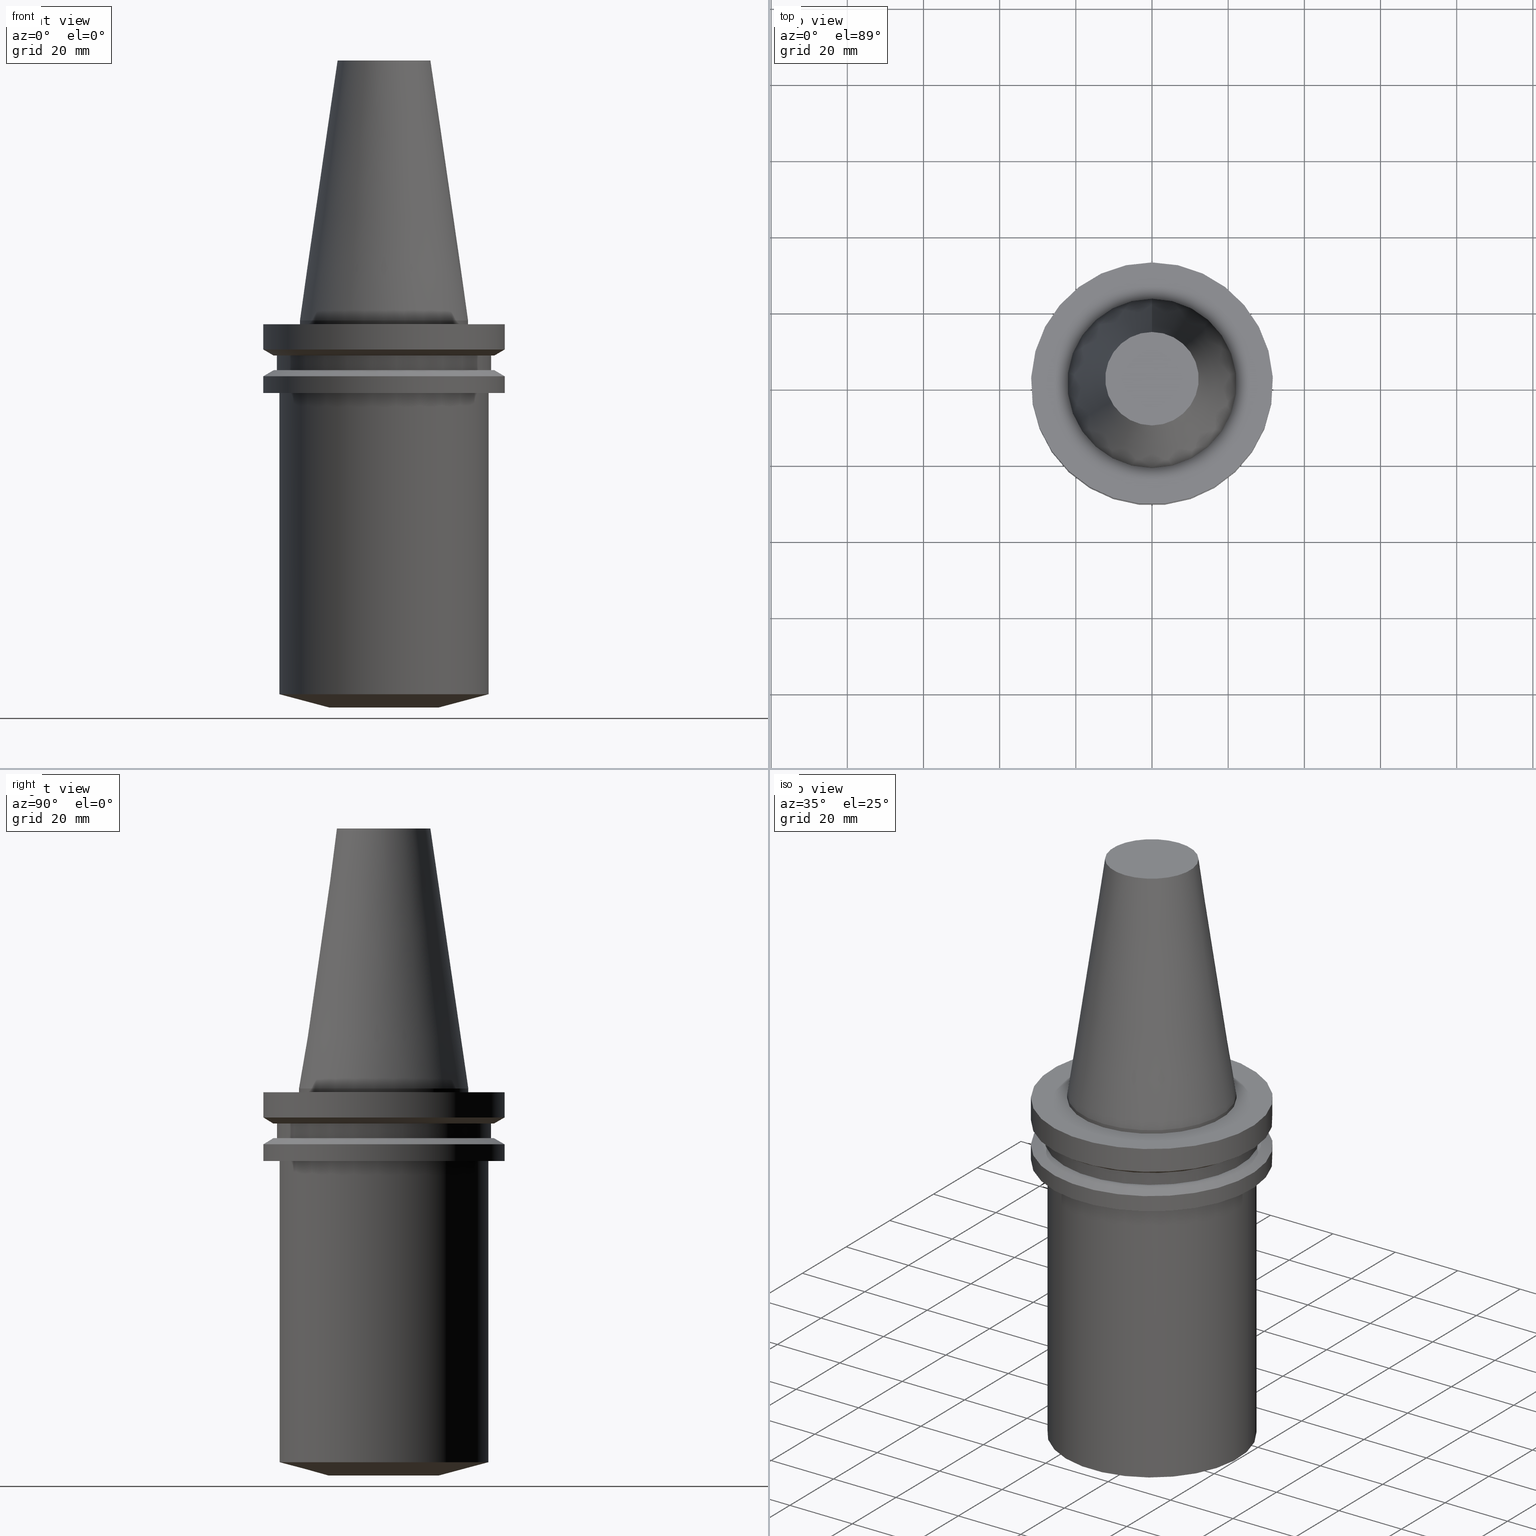
[diagram: canonical four-view strip — front | top / right | iso, engineering-drawing reading convention]
A machine part, canonical four-view strip (front | top / right | iso — engineering-drawing reading convention). The complete STEP part file that produces these views, byte-faithful:
ISO-10303-21;
HEADER;
FILE_DESCRIPTION((''),'1');
FILE_NAME('V:/01_Dxf_Field-HP\X2\FF71FF6FFF8CFF9F5916\X0\2013/BIGKAISER\X2\FF76FF80FF9BFF78FF9E63B28F095206\X0\_BKUS_201803/BCV40Y-BSL/BCV40Y-BSL1.000-4.stp','2018-03-13T06:23:49',(''),(''),'Spatial Interop R21 SP3','Kubotek KeyCreator 2011 V10.0.2 (22737)',' ');
FILE_SCHEMA(('automotive_design'));
ENDSEC;
DATA;
#1=MECHANICAL_DESIGN_GEOMETRIC_PRESENTATION_REPRESENTATION(' ',(#10,#11,#12,#13,#14,#15,#16,#17,#18,#19,#20,#21,#22,#23,#24,#25,#26,#27,#28,#29,#30,#31,#32,#33,#34,#35,#36,#37,#38,#39),#6);
#2=PRODUCT_DEFINITION_CONTEXT('',#40,'design');
#3=APPLICATION_PROTOCOL_DEFINITION('INTERNATIONAL STANDARD','automotive_design',1994,#40);
#4=PRODUCT_CATEGORY_RELATIONSHIP('NONE','NONE',#41,#42);
#5=SHAPE_DEFINITION_REPRESENTATION(#43,#44);
#6= (GEOMETRIC_REPRESENTATION_CONTEXT(3)GLOBAL_UNCERTAINTY_ASSIGNED_CONTEXT((#47))GLOBAL_UNIT_ASSIGNED_CONTEXT((#49,#50,#51))REPRESENTATION_CONTEXT('NONE','WORKSPACE'));
#10=STYLED_ITEM('',(#53,#54),#55);
#11=STYLED_ITEM('',(#56,#57),#58);
#12=STYLED_ITEM('',(#59),#60);
#13=STYLED_ITEM('',(#61),#62);
#14=STYLED_ITEM('',(#63),#64);
#15=STYLED_ITEM('',(#65),#66);
#16=STYLED_ITEM('',(#67,#68),#69);
#17=STYLED_ITEM('',(#70),#71);
#18=STYLED_ITEM('',(#72,#73),#74);
#19=STYLED_ITEM('',(#75,#76),#77);
#20=STYLED_ITEM('',(#78,#79),#80);
#21=STYLED_ITEM('',(#81),#82);
#22=STYLED_ITEM('',(#83,#84),#85);
#23=STYLED_ITEM('',(#86),#87);
#24=STYLED_ITEM('',(#88,#89),#90);
#25=STYLED_ITEM('',(#91,#92),#93);
#26=STYLED_ITEM('',(#94),#95);
#27=STYLED_ITEM('',(#96,#97),#98);
#28=STYLED_ITEM('',(#99,#100),#101);
#29=STYLED_ITEM('',(#102,#103),#104);
#30=STYLED_ITEM('',(#105),#106);
#31=STYLED_ITEM('',(#107,#108),#109);
#32=STYLED_ITEM('',(#110),#111);
#33=STYLED_ITEM('',(#112,#113),#114);
#34=STYLED_ITEM('',(#115),#116);
#35=STYLED_ITEM('',(#117,#118),#119);
#36=STYLED_ITEM('',(#120),#121);
#37=STYLED_ITEM('',(#122),#123);
#38=STYLED_ITEM('',(#124),#125);
#39=STYLED_ITEM('',(#126,#127),#128);
#40=APPLICATION_CONTEXT(' ');
#41=PRODUCT_CATEGORY('part','NONE');
#42=PRODUCT_RELATED_PRODUCT_CATEGORY('detail',' ',(#129));
#43=PRODUCT_DEFINITION_SHAPE('NONE','NONE',#130);
#44=ADVANCED_BREP_SHAPE_REPRESENTATION('Unnamed[1]',(#114,#131),#6);
#47=UNCERTAINTY_MEASURE_WITH_UNIT(LENGTH_MEASURE(1.0E-006),#49,'','');
#49= (CONVERSION_BASED_UNIT('MILLIMETRE',#134)LENGTH_UNIT()NAMED_UNIT(#137));
#50= (NAMED_UNIT(#139)PLANE_ANGLE_UNIT()SI_UNIT($,.RADIAN.));
#51= (NAMED_UNIT(#139)SOLID_ANGLE_UNIT()SI_UNIT($,.STERADIAN.));
#53=PRESENTATION_STYLE_ASSIGNMENT((#145));
#54=PRESENTATION_STYLE_ASSIGNMENT((#146));
#55=ADVANCED_FACE('Unnamed[1]',(#147,#148),#149,.T.);
#56=PRESENTATION_STYLE_ASSIGNMENT((#150));
#57=PRESENTATION_STYLE_ASSIGNMENT((#151));
#58=ADVANCED_FACE('Unnamed[1]',(#152,#153),#154,.T.);
#59=PRESENTATION_STYLE_ASSIGNMENT((#155));
#60=EDGE_CURVE('Unnamed[1]',#156,#156,#157,.T.);
#61=PRESENTATION_STYLE_ASSIGNMENT((#158));
#62=EDGE_CURVE('Unnamed[1]',#159,#159,#160,.T.);
#63=PRESENTATION_STYLE_ASSIGNMENT((#161));
#64=EDGE_CURVE('Unnamed[1]',#162,#162,#163,.T.);
#65=PRESENTATION_STYLE_ASSIGNMENT((#164));
#66=EDGE_CURVE('Unnamed[1]',#165,#165,#166,.T.);
#67=PRESENTATION_STYLE_ASSIGNMENT((#167));
#68=PRESENTATION_STYLE_ASSIGNMENT((#168));
#69=ADVANCED_FACE('Unnamed[1]',(#169),#170,.T.);
#70=PRESENTATION_STYLE_ASSIGNMENT((#171));
#71=EDGE_CURVE('Unnamed[1]',#172,#172,#173,.T.);
#72=PRESENTATION_STYLE_ASSIGNMENT((#174));
#73=PRESENTATION_STYLE_ASSIGNMENT((#175));
#74=ADVANCED_FACE('Unnamed[1]',(#176,#177),#178,.T.);
#75=PRESENTATION_STYLE_ASSIGNMENT((#179));
#76=PRESENTATION_STYLE_ASSIGNMENT((#180));
#77=ADVANCED_FACE('Unnamed[1]',(#181,#182),#183,.T.);
#78=PRESENTATION_STYLE_ASSIGNMENT((#184));
#79=PRESENTATION_STYLE_ASSIGNMENT((#185));
#80=ADVANCED_FACE('Unnamed[1]',(#186),#187,.T.);
#81=PRESENTATION_STYLE_ASSIGNMENT((#188));
#82=EDGE_CURVE('Unnamed[1]',#189,#189,#190,.T.);
#83=PRESENTATION_STYLE_ASSIGNMENT((#191));
#84=PRESENTATION_STYLE_ASSIGNMENT((#192));
#85=ADVANCED_FACE('Unnamed[1]',(#193,#194),#195,.T.);
#86=PRESENTATION_STYLE_ASSIGNMENT((#196));
#87=EDGE_CURVE('Unnamed[1]',#197,#197,#198,.T.);
#88=PRESENTATION_STYLE_ASSIGNMENT((#199));
#89=PRESENTATION_STYLE_ASSIGNMENT((#200));
#90=ADVANCED_FACE('Unnamed[1]',(#201,#202),#203,.T.);
#91=PRESENTATION_STYLE_ASSIGNMENT((#204));
#92=PRESENTATION_STYLE_ASSIGNMENT((#205));
#93=ADVANCED_FACE('Unnamed[1]',(#206,#207),#208,.T.);
#94=PRESENTATION_STYLE_ASSIGNMENT((#209));
#95=EDGE_CURVE('Unnamed[1]',#210,#210,#211,.T.);
#96=PRESENTATION_STYLE_ASSIGNMENT((#212));
#97=PRESENTATION_STYLE_ASSIGNMENT((#213));
#98=ADVANCED_FACE('Unnamed[1]',(#214,#215),#216,.T.);
#99=PRESENTATION_STYLE_ASSIGNMENT((#217));
#100=PRESENTATION_STYLE_ASSIGNMENT((#218));
#101=ADVANCED_FACE('Unnamed[1]',(#219,#220),#221,.T.);
#102=PRESENTATION_STYLE_ASSIGNMENT((#222));
#103=PRESENTATION_STYLE_ASSIGNMENT((#223));
#104=ADVANCED_FACE('Unnamed[1]',(#224,#225),#226,.T.);
#105=PRESENTATION_STYLE_ASSIGNMENT((#227));
#106=EDGE_CURVE('Unnamed[1]',#228,#228,#229,.T.);
#107=PRESENTATION_STYLE_ASSIGNMENT((#230));
#108=PRESENTATION_STYLE_ASSIGNMENT((#231));
#109=ADVANCED_FACE('Unnamed[1]',(#232,#233),#234,.T.);
#110=PRESENTATION_STYLE_ASSIGNMENT((#235));
#111=EDGE_CURVE('Unnamed[1]',#236,#236,#237,.T.);
#112=PRESENTATION_STYLE_ASSIGNMENT((#238));
#113=PRESENTATION_STYLE_ASSIGNMENT((#239));
#114=MANIFOLD_SOLID_BREP('Unnamed[1]',#240);
#115=PRESENTATION_STYLE_ASSIGNMENT((#241));
#116=EDGE_CURVE('Unnamed[1]',#242,#242,#243,.T.);
#117=PRESENTATION_STYLE_ASSIGNMENT((#244));
#118=PRESENTATION_STYLE_ASSIGNMENT((#245));
#119=ADVANCED_FACE('Unnamed[1]',(#246,#247),#248,.T.);
#120=PRESENTATION_STYLE_ASSIGNMENT((#249));
#121=EDGE_CURVE('Unnamed[1]',#250,#250,#251,.T.);
#122=PRESENTATION_STYLE_ASSIGNMENT((#252));
#123=EDGE_CURVE('Unnamed[1]',#253,#253,#254,.T.);
#124=PRESENTATION_STYLE_ASSIGNMENT((#255));
#125=EDGE_CURVE('Unnamed[1]',#256,#256,#257,.T.);
#126=PRESENTATION_STYLE_ASSIGNMENT((#258));
#127=PRESENTATION_STYLE_ASSIGNMENT((#259));
#128=ADVANCED_FACE('Unnamed[1]',(#260,#261),#262,.T.);
#129=PRODUCT('Unnamed[1]','Unnamed[1]','PART-Unnamed[1]-DESC',(#263));
#130=PRODUCT_DEFINITION('NONE','NONE',#264,#2);
#131=AXIS2_PLACEMENT_3D('',#265,#266,#267);
#134=LENGTH_MEASURE_WITH_UNIT(LENGTH_MEASURE(1.0),#268);
#137=DIMENSIONAL_EXPONENTS(1.0,0.0,0.0,0.0,0.0,0.0,0.0);
#139=DIMENSIONAL_EXPONENTS(0.0,0.0,0.0,0.0,0.0,0.0,0.0);
#145=SURFACE_STYLE_USAGE(.BOTH.,#269);
#146=CURVE_STYLE('',#270,POSITIVE_LENGTH_MEASURE(1000.0),#271);
#147=FACE_OUTER_BOUND('',#272,.T.);
#148=FACE_BOUND('',#273,.T.);
#149=PLANE('',#274);
#150=SURFACE_STYLE_USAGE(.BOTH.,#275);
#151=CURVE_STYLE('',#276,POSITIVE_LENGTH_MEASURE(1000.0),#277);
#152=FACE_BOUND('',#278,.T.);
#153=FACE_BOUND('',#279,.T.);
#154=CYLINDRICAL_SURFACE('',#280,22.225);
#155=CURVE_STYLE('',#281,POSITIVE_LENGTH_MEASURE(1000.0),#282);
#156=VERTEX_POINT('',#283);
#157=CIRCLE('',#284,28.95591319);
#158=CURVE_STYLE('',#285,POSITIVE_LENGTH_MEASURE(1000.0),#286);
#159=VERTEX_POINT('',#287);
#160=CIRCLE('',#288,28.18);
#161=CURVE_STYLE('',#289,POSITIVE_LENGTH_MEASURE(1000.0),#290);
#162=VERTEX_POINT('',#291);
#163=CIRCLE('',#292,27.4999999999247);
#164=CURVE_STYLE('',#293,POSITIVE_LENGTH_MEASURE(1000.0),#294);
#165=VERTEX_POINT('',#295);
#166=CIRCLE('',#296,22.225);
#167=SURFACE_STYLE_USAGE(.BOTH.,#297);
#168=CURVE_STYLE('',#298,POSITIVE_LENGTH_MEASURE(1000.0),#299);
#169=FACE_OUTER_BOUND('',#300,.T.);
#170=PLANE('',#301);
#171=CURVE_STYLE('',#302,POSITIVE_LENGTH_MEASURE(1000.0),#303);
#172=VERTEX_POINT('',#304);
#173=CIRCLE('',#305,28.18);
#174=SURFACE_STYLE_USAGE(.BOTH.,#306);
#175=CURVE_STYLE('',#307,POSITIVE_LENGTH_MEASURE(1000.0),#308);
#176=FACE_BOUND('',#309,.T.);
#177=FACE_BOUND('',#310,.T.);
#178=CONICAL_SURFACE('',#311,17.2484375007384,0.144812498217751);
#179=SURFACE_STYLE_USAGE(.BOTH.,#312);
#180=CURVE_STYLE('',#313,POSITIVE_LENGTH_MEASURE(1000.0),#314);
#181=FACE_BOUND('',#315,.T.);
#182=FACE_BOUND('',#316,.T.);
#183=CYLINDRICAL_SURFACE('',#317,31.75);
#184=SURFACE_STYLE_USAGE(.BOTH.,#318);
#185=CURVE_STYLE('',#319,POSITIVE_LENGTH_MEASURE(1000.0),#320);
#186=FACE_OUTER_BOUND('',#321,.T.);
#187=PLANE('',#322);
#188=CURVE_STYLE('',#323,POSITIVE_LENGTH_MEASURE(1000.0),#324);
#189=VERTEX_POINT('',#325);
#190=CIRCLE('',#326,27.5000000000047);
#191=SURFACE_STYLE_USAGE(.BOTH.,#327);
#192=CURVE_STYLE('',#328,POSITIVE_LENGTH_MEASURE(1000.0),#329);
#193=FACE_OUTER_BOUND('',#330,.T.);
#194=FACE_BOUND('',#331,.T.);
#195=PLANE('',#332);
#196=CURVE_STYLE('',#333,POSITIVE_LENGTH_MEASURE(1000.0),#334);
#197=VERTEX_POINT('',#335);
#198=CIRCLE('',#336,31.75);
#199=SURFACE_STYLE_USAGE(.BOTH.,#337);
#200=CURVE_STYLE('',#338,POSITIVE_LENGTH_MEASURE(1000.0),#339);
#201=FACE_BOUND('',#340,.T.);
#202=FACE_BOUND('',#341,.T.);
#203=CYLINDRICAL_SURFACE('',#342,27.4999999999647);
#204=SURFACE_STYLE_USAGE(.BOTH.,#343);
#205=CURVE_STYLE('',#344,POSITIVE_LENGTH_MEASURE(1000.0),#345);
#206=FACE_BOUND('',#346,.T.);
#207=FACE_OUTER_BOUND('',#347,.T.);
#208=PLANE('',#348);
#209=CURVE_STYLE('',#349,POSITIVE_LENGTH_MEASURE(1000.0),#350);
#210=VERTEX_POINT('',#351);
#211=CIRCLE('',#352,14.4999999999969);
#212=SURFACE_STYLE_USAGE(.BOTH.,#353);
#213=CURVE_STYLE('',#354,POSITIVE_LENGTH_MEASURE(1000.0),#355);
#214=FACE_BOUND('',#356,.T.);
#215=FACE_OUTER_BOUND('',#357,.T.);
#216=PLANE('',#358);
#217=SURFACE_STYLE_USAGE(.BOTH.,#359);
#218=CURVE_STYLE('',#360,POSITIVE_LENGTH_MEASURE(1000.0),#361);
#219=FACE_BOUND('',#362,.T.);
#220=FACE_BOUND('',#363,.T.);
#221=CONICAL_SURFACE('',#364,30.352956595,1.04719755170464);
#222=SURFACE_STYLE_USAGE(.BOTH.,#365);
#223=CURVE_STYLE('',#366,POSITIVE_LENGTH_MEASURE(1000.0),#367);
#224=FACE_BOUND('',#368,.T.);
#225=FACE_BOUND('',#369,.T.);
#226=CONICAL_SURFACE('',#370,20.9999999999608,1.30899693899575);
#227=CURVE_STYLE('',#371,POSITIVE_LENGTH_MEASURE(1000.0),#372);
#228=VERTEX_POINT('',#373);
#229=CIRCLE('',#374,28.98016191);
#230=SURFACE_STYLE_USAGE(.BOTH.,#375);
#231=CURVE_STYLE('',#376,POSITIVE_LENGTH_MEASURE(1000.0),#377);
#232=FACE_BOUND('',#378,.T.);
#233=FACE_BOUND('',#379,.T.);
#234=CONICAL_SURFACE('',#380,30.365080955,1.04719755034994);
#235=CURVE_STYLE('',#381,POSITIVE_LENGTH_MEASURE(1000.0),#382);
#236=VERTEX_POINT('',#383);
#237=CIRCLE('',#384,31.75);
#238=SURFACE_STYLE_USAGE(.BOTH.,#385);
#239=CURVE_STYLE('',#386,POSITIVE_LENGTH_MEASURE(1000.0),#387);
#240=CLOSED_SHELL('',(#69,#74,#58,#85,#77,#109,#93,#128,#55,#101,#119,#98,#90,#104,#80));
#241=CURVE_STYLE('',#388,POSITIVE_LENGTH_MEASURE(1000.0),#389);
#242=VERTEX_POINT('',#390);
#243=CIRCLE('',#391,31.75);
#244=SURFACE_STYLE_USAGE(.BOTH.,#392);
#245=CURVE_STYLE('',#393,POSITIVE_LENGTH_MEASURE(1000.0),#394);
#246=FACE_BOUND('',#395,.T.);
#247=FACE_BOUND('',#396,.T.);
#248=CYLINDRICAL_SURFACE('',#397,31.75);
#249=CURVE_STYLE('',#398,POSITIVE_LENGTH_MEASURE(1000.0),#399);
#250=VERTEX_POINT('',#400);
#251=CIRCLE('',#401,12.2718750014769);
#252=CURVE_STYLE('',#402,POSITIVE_LENGTH_MEASURE(1000.0),#403);
#253=VERTEX_POINT('',#404);
#254=CIRCLE('',#405,31.75);
#255=CURVE_STYLE('',#406,POSITIVE_LENGTH_MEASURE(1000.0),#407);
#256=VERTEX_POINT('',#408);
#257=CIRCLE('',#409,22.225);
#258=SURFACE_STYLE_USAGE(.BOTH.,#410);
#259=CURVE_STYLE('',#411,POSITIVE_LENGTH_MEASURE(1000.0),#412);
#260=FACE_BOUND('',#413,.T.);
#261=FACE_BOUND('',#414,.T.);
#262=CYLINDRICAL_SURFACE('',#415,28.18);
#263=PRODUCT_CONTEXT('',#40,'mechanical');
#264=PRODUCT_DEFINITION_FORMATION_WITH_SPECIFIED_SOURCE(' ','NONE',#129,.NOT_KNOWN.);
#265=CARTESIAN_POINT('',(0.0,0.0,0.0));
#266=DIRECTION('',(0.0,0.0,1.0));
#267=DIRECTION('',(1.0,0.0,0.0));
#268= (NAMED_UNIT(#137)LENGTH_UNIT()SI_UNIT(.MILLI.,.METRE.));
#269=SURFACE_SIDE_STYLE('',(#417));
#270=DRAUGHTING_PRE_DEFINED_CURVE_FONT('continuous');
#271=COLOUR_RGB('',0.0,1.0,0.0);
#272=EDGE_LOOP('',(#418));
#273=EDGE_LOOP('',(#419));
#274=AXIS2_PLACEMENT_3D('',#420,#421,#422);
#275=SURFACE_SIDE_STYLE('',(#423));
#276=DRAUGHTING_PRE_DEFINED_CURVE_FONT('continuous');
#277=COLOUR_RGB('',0.0,1.0,0.0);
#278=EDGE_LOOP('',(#424));
#279=EDGE_LOOP('',(#425));
#280=AXIS2_PLACEMENT_3D('',#426,#427,#428);
#281=DRAUGHTING_PRE_DEFINED_CURVE_FONT('continuous');
#282=COLOUR_RGB('',0.0,1.0,0.0);
#283=CARTESIAN_POINT('',(7.98469713044073E-016,28.95591319,-13.04));
#284=AXIS2_PLACEMENT_3D('',#429,#430,#431);
#285=DRAUGHTING_PRE_DEFINED_CURVE_FONT('continuous');
#286=COLOUR_RGB('',0.0,1.0,0.0);
#287=CARTESIAN_POINT('',(7.98469713044073E-016,28.18,-13.04));
#288=AXIS2_PLACEMENT_3D('',#432,#433,#434);
#289=DRAUGHTING_PRE_DEFINED_CURVE_FONT('continuous');
#290=COLOUR_RGB('',0.0,1.0,0.0);
#291=CARTESIAN_POINT('',(6.00791271112047E-015,27.4999999999247,-98.1166604984134));
#292=AXIS2_PLACEMENT_3D('',#435,#436,#437);
#293=DRAUGHTING_PRE_DEFINED_CURVE_FONT('continuous');
#294=COLOUR_RGB('',0.0,1.0,0.0);
#295=CARTESIAN_POINT('',(-2.73944275289641E-031,22.225,2.72177751110499E-015));
#296=AXIS2_PLACEMENT_3D('',#438,#439,#440);
#297=SURFACE_SIDE_STYLE('',(#441));
#298=DRAUGHTING_PRE_DEFINED_CURVE_FONT('continuous');
#299=COLOUR_RGB('',0.0,1.0,0.0);
#300=EDGE_LOOP('',(#442));
#301=AXIS2_PLACEMENT_3D('',#443,#444,#445);
#302=DRAUGHTING_PRE_DEFINED_CURVE_FONT('continuous');
#303=COLOUR_RGB('',0.0,1.0,0.0);
#304=CARTESIAN_POINT('',(5.63337527607782E-016,28.18,-9.2));
#305=AXIS2_PLACEMENT_3D('',#446,#447,#448);
#306=SURFACE_SIDE_STYLE('',(#449));
#307=DRAUGHTING_PRE_DEFINED_CURVE_FONT('continuous');
#308=COLOUR_RGB('',0.0,1.0,0.0);
#309=EDGE_LOOP('',(#450));
#310=EDGE_LOOP('',(#451));
#311=AXIS2_PLACEMENT_3D('',#452,#453,#454);
#312=SURFACE_SIDE_STYLE('',(#455));
#313=DRAUGHTING_PRE_DEFINED_CURVE_FONT('continuous');
#314=COLOUR_RGB('',0.0,1.0,0.0);
#315=EDGE_LOOP('',(#456));
#316=EDGE_LOOP('',(#457));
#317=AXIS2_PLACEMENT_3D('',#458,#459,#460);
#318=SURFACE_SIDE_STYLE('',(#461));
#319=DRAUGHTING_PRE_DEFINED_CURVE_FONT('continuous');
#320=COLOUR_RGB('',0.0,1.0,0.0);
#321=EDGE_LOOP('',(#462));
#322=AXIS2_PLACEMENT_3D('',#463,#464,#465);
#323=DRAUGHTING_PRE_DEFINED_CURVE_FONT('continuous');
#324=COLOUR_RGB('',0.0,1.0,0.0);
#325=CARTESIAN_POINT('',(1.16647607618785E-015,27.5000000000047,-19.05));
#326=AXIS2_PLACEMENT_3D('',#466,#467,#468);
#327=SURFACE_SIDE_STYLE('',(#469));
#328=DRAUGHTING_PRE_DEFINED_CURVE_FONT('continuous');
#329=COLOUR_RGB('',0.0,1.0,0.0);
#330=EDGE_LOOP('',(#470));
#331=EDGE_LOOP('',(#471));
#332=AXIS2_PLACEMENT_3D('',#472,#473,#474);
#333=DRAUGHTING_PRE_DEFINED_CURVE_FONT('continuous');
#334=COLOUR_RGB('',0.0,1.0,0.0);
#335=CARTESIAN_POINT('',(8.97247689112643E-016,31.75,-14.65316677));
#336=AXIS2_PLACEMENT_3D('',#475,#476,#477);
#337=SURFACE_SIDE_STYLE('',(#478));
#338=DRAUGHTING_PRE_DEFINED_CURVE_FONT('continuous');
#339=COLOUR_RGB('',0.0,1.0,0.0);
#340=EDGE_LOOP('',(#479));
#341=EDGE_LOOP('',(#480));
#342=AXIS2_PLACEMENT_3D('',#481,#482,#483);
#343=SURFACE_SIDE_STYLE('',(#484));
#344=DRAUGHTING_PRE_DEFINED_CURVE_FONT('continuous');
#345=COLOUR_RGB('',0.0,1.0,0.0);
#346=EDGE_LOOP('',(#485));
#347=EDGE_LOOP('',(#486));
#348=AXIS2_PLACEMENT_3D('',#487,#488,#489);
#349=DRAUGHTING_PRE_DEFINED_CURVE_FONT('continuous');
#350=COLOUR_RGB('',0.0,1.0,0.0);
#351=CARTESIAN_POINT('',(6.22120573966847E-015,14.4999999999969,-101.599999999999));
#352=AXIS2_PLACEMENT_3D('',#490,#491,#492);
#353=SURFACE_SIDE_STYLE('',(#493));
#354=DRAUGHTING_PRE_DEFINED_CURVE_FONT('continuous');
#355=COLOUR_RGB('',0.0,1.0,0.0);
#356=EDGE_LOOP('',(#494));
#357=EDGE_LOOP('',(#495));
#358=AXIS2_PLACEMENT_3D('',#496,#497,#498);
#359=SURFACE_SIDE_STYLE('',(#499));
#360=DRAUGHTING_PRE_DEFINED_CURVE_FONT('continuous');
#361=COLOUR_RGB('',0.0,1.0,0.0);
#362=EDGE_LOOP('',(#500));
#363=EDGE_LOOP('',(#501));
#364=AXIS2_PLACEMENT_3D('',#502,#503,#504);
#365=SURFACE_SIDE_STYLE('',(#505));
#366=DRAUGHTING_PRE_DEFINED_CURVE_FONT('continuous');
#367=COLOUR_RGB('',0.0,1.0,0.0);
#368=EDGE_LOOP('',(#506));
#369=EDGE_LOOP('',(#507));
#370=AXIS2_PLACEMENT_3D('',#508,#509,#510);
#371=DRAUGHTING_PRE_DEFINED_CURVE_FONT('continuous');
#372=COLOUR_RGB('',0.0,1.0,0.0);
#373=CARTESIAN_POINT('',(5.63337527607782E-016,28.98016191,-9.2));
#374=AXIS2_PLACEMENT_3D('',#511,#512,#513);
#375=SURFACE_SIDE_STYLE('',(#514));
#376=DRAUGHTING_PRE_DEFINED_CURVE_FONT('continuous');
#377=COLOUR_RGB('',0.0,1.0,0.0);
#378=EDGE_LOOP('',(#515));
#379=EDGE_LOOP('',(#516));
#380=AXIS2_PLACEMENT_3D('',#517,#518,#519);
#381=DRAUGHTING_PRE_DEFINED_CURVE_FONT('continuous');
#382=COLOUR_RGB('',0.0,1.0,0.0);
#383=CARTESIAN_POINT('',(1.16647607618785E-015,31.75,-19.05));
#384=AXIS2_PLACEMENT_3D('',#520,#521,#522);
#385=SURFACE_SIDE_STYLE('',(#523));
#386=DRAUGHTING_PRE_DEFINED_CURVE_FONT('continuous');
#387=COLOUR_RGB('',0.0,1.0,0.0);
#388=DRAUGHTING_PRE_DEFINED_CURVE_FONT('continuous');
#389=COLOUR_RGB('',0.0,1.0,0.0);
#390=CARTESIAN_POINT('',(4.65416804298617E-016,31.75,-7.60083323));
#391=AXIS2_PLACEMENT_3D('',#524,#525,#526);
#392=SURFACE_SIDE_STYLE('',(#527));
#393=DRAUGHTING_PRE_DEFINED_CURVE_FONT('continuous');
#394=COLOUR_RGB('',0.0,1.0,0.0);
#395=EDGE_LOOP('',(#528));
#396=EDGE_LOOP('',(#529));
#397=AXIS2_PLACEMENT_3D('',#530,#531,#532);
#398=DRAUGHTING_PRE_DEFINED_CURVE_FONT('continuous');
#399=COLOUR_RGB('',0.0,1.0,0.0);
#400=CARTESIAN_POINT('',(-4.17910720209034E-015,12.2718750014769,68.25));
#401=AXIS2_PLACEMENT_3D('',#533,#534,#535);
#402=DRAUGHTING_PRE_DEFINED_CURVE_FONT('continuous');
#403=COLOUR_RGB('',0.0,1.0,0.0);
#404=CARTESIAN_POINT('',(6.12323399573673E-017,31.75,-0.999999999999996));
#405=AXIS2_PLACEMENT_3D('',#536,#537,#538);
#406=DRAUGHTING_PRE_DEFINED_CURVE_FONT('continuous');
#407=COLOUR_RGB('',0.0,1.0,0.0);
#408=CARTESIAN_POINT('',(6.12323399573674E-017,22.225,-0.999999999999997));
#409=AXIS2_PLACEMENT_3D('',#539,#540,#541);
#410=SURFACE_SIDE_STYLE('',(#542));
#411=DRAUGHTING_PRE_DEFINED_CURVE_FONT('continuous');
#412=COLOUR_RGB('',0.0,1.0,0.0);
#413=EDGE_LOOP('',(#543));
#414=EDGE_LOOP('',(#544));
#415=AXIS2_PLACEMENT_3D('',#545,#546,#547);
#417=SURFACE_STYLE_FILL_AREA(#548);
#418=ORIENTED_EDGE('',*,*,#60,.F.);
#419=ORIENTED_EDGE('',*,*,#62,.T.);
#420=CARTESIAN_POINT('',(7.98469713044073E-016,28.567956595,-13.04));
#421=DIRECTION('',(-6.12323399573677E-017,-1.22464679914735E-016,1.0));
#422=DIRECTION('',(1.23259516440783E-032,-1.0,-1.22464679914735E-016));
#423=SURFACE_STYLE_FILL_AREA(#549);
#424=ORIENTED_EDGE('',*,*,#125,.F.);
#425=ORIENTED_EDGE('',*,*,#66,.T.);
#426=CARTESIAN_POINT('',(3.06161699786838E-017,6.12323399573676E-017,-0.5));
#427=DIRECTION('',(6.12323399573677E-017,1.22464679914735E-016,-1.0));
#428=DIRECTION('',(-1.23259516440783E-032,1.0,1.22464679914735E-016));
#429=CARTESIAN_POINT('',(7.98469713044074E-016,1.59693942608815E-015,-13.04));
#430=DIRECTION('',(6.12323399573677E-017,1.22464679914735E-016,-1.0));
#431=DIRECTION('',(-1.23259516440783E-032,1.0,1.22464679914735E-016));
#432=CARTESIAN_POINT('',(7.98469713044074E-016,1.59693942608815E-015,-13.04));
#433=DIRECTION('',(6.12323399573677E-017,1.22464679914735E-016,-1.0));
#434=DIRECTION('',(-1.23259516440783E-032,1.0,1.22464679914735E-016));
#435=CARTESIAN_POINT('',(6.00791271112047E-015,1.20158254222409E-014,-98.1166604984134));
#436=DIRECTION('',(6.12323399573677E-017,1.22464679914735E-016,-1.0));
#437=DIRECTION('',(-1.23259516440783E-032,1.0,1.22464679914735E-016));
#438=CARTESIAN_POINT('',(0.0,0.0,0.0));
#439=DIRECTION('',(6.12323399573677E-017,1.22464679914735E-016,-1.0));
#440=DIRECTION('',(-1.23259516440783E-032,1.0,1.22464679914735E-016));
#441=SURFACE_STYLE_FILL_AREA(#550);
#442=ORIENTED_EDGE('',*,*,#121,.F.);
#443=CARTESIAN_POINT('',(-4.17910720209034E-015,6.13593750073843,68.25));
#444=DIRECTION('',(-6.12323399573677E-017,-1.22464679914735E-016,1.0));
#445=DIRECTION('',(1.23259516440783E-032,-1.0,-1.22464679914735E-016));
#446=CARTESIAN_POINT('',(5.63337527607783E-016,1.12667505521557E-015,-9.2));
#447=DIRECTION('',(6.12323399573677E-017,1.22464679914735E-016,-1.0));
#448=DIRECTION('',(-1.23259516440783E-032,1.0,1.22464679914735E-016));
#449=SURFACE_STYLE_FILL_AREA(#551);
#450=ORIENTED_EDGE('',*,*,#66,.F.);
#451=ORIENTED_EDGE('',*,*,#121,.T.);
#452=CARTESIAN_POINT('',(-2.08955360104517E-015,-4.17910720209034E-015,34.125));
#453=DIRECTION('',(6.12323399573677E-017,1.22464679914735E-016,-1.0));
#454=DIRECTION('',(-1.23259516440783E-032,1.0,1.22464679914735E-016));
#455=SURFACE_STYLE_FILL_AREA(#552);
#456=ORIENTED_EDGE('',*,*,#116,.F.);
#457=ORIENTED_EDGE('',*,*,#123,.T.);
#458=CARTESIAN_POINT('',(2.63324572127992E-016,5.26649144255985E-016,-4.300416615));
#459=DIRECTION('',(6.12323399573677E-017,1.22464679914735E-016,-1.0));
#460=DIRECTION('',(-1.23259516440783E-032,1.0,1.22464679914735E-016));
#461=SURFACE_STYLE_FILL_AREA(#553);
#462=ORIENTED_EDGE('',*,*,#95,.T.);
#463=CARTESIAN_POINT('',(6.22120573966847E-015,7.24999999999845,-101.599999999999));
#464=DIRECTION('',(6.12323399573677E-017,1.22464679914735E-016,-1.0));
#465=DIRECTION('',(-1.23259516440783E-032,1.0,1.22464679914735E-016));
#466=CARTESIAN_POINT('',(1.16647607618785E-015,2.33295215237571E-015,-19.05));
#467=DIRECTION('',(6.12323399573677E-017,1.22464679914735E-016,-1.0));
#468=DIRECTION('',(-1.23259516440783E-032,1.0,1.22464679914735E-016));
#469=SURFACE_STYLE_FILL_AREA(#554);
#470=ORIENTED_EDGE('',*,*,#123,.F.);
#471=ORIENTED_EDGE('',*,*,#125,.T.);
#472=CARTESIAN_POINT('',(6.12323399573673E-017,26.9875,-0.999999999999997));
#473=DIRECTION('',(-6.12323399573677E-017,-1.22464679914735E-016,1.0));
#474=DIRECTION('',(1.23259516440783E-032,-1.0,-1.22464679914735E-016));
#475=CARTESIAN_POINT('',(8.97247689112643E-016,1.79449537822529E-015,-14.65316677));
#476=DIRECTION('',(6.12323399573677E-017,1.22464679914735E-016,-1.0));
#477=DIRECTION('',(-1.23259516440783E-032,1.0,1.22464679914735E-016));
#478=SURFACE_STYLE_FILL_AREA(#555);
#479=ORIENTED_EDGE('',*,*,#64,.F.);
#480=ORIENTED_EDGE('',*,*,#82,.T.);
#481=CARTESIAN_POINT('',(3.58719439365416E-015,7.17438878730833E-015,-58.5833302492067));
#482=DIRECTION('',(6.12323399573677E-017,1.22464679914735E-016,-1.0));
#483=DIRECTION('',(-1.23259516440783E-032,1.0,1.22464679914735E-016));
#484=SURFACE_STYLE_FILL_AREA(#556);
#485=ORIENTED_EDGE('',*,*,#71,.F.);
#486=ORIENTED_EDGE('',*,*,#106,.T.);
#487=CARTESIAN_POINT('',(5.63337527607782E-016,28.580080955,-9.2));
#488=DIRECTION('',(6.12323399573677E-017,1.22464679914735E-016,-1.0));
#489=DIRECTION('',(-1.23259516440783E-032,1.0,1.22464679914735E-016));
#490=CARTESIAN_POINT('',(6.22120573966847E-015,1.24424114793369E-014,-101.599999999999));
#491=DIRECTION('',(6.12323399573677E-017,1.22464679914735E-016,-1.0));
#492=DIRECTION('',(-1.23259516440783E-032,1.0,1.22464679914735E-016));
#493=SURFACE_STYLE_FILL_AREA(#557);
#494=ORIENTED_EDGE('',*,*,#82,.F.);
#495=ORIENTED_EDGE('',*,*,#111,.T.);
#496=CARTESIAN_POINT('',(1.16647607618785E-015,29.6250000000023,-19.05));
#497=DIRECTION('',(6.12323399573677E-017,1.22464679914735E-016,-1.0));
#498=DIRECTION('',(-1.23259516440783E-032,1.0,1.22464679914735E-016));
#499=SURFACE_STYLE_FILL_AREA(#558);
#500=ORIENTED_EDGE('',*,*,#87,.F.);
#501=ORIENTED_EDGE('',*,*,#60,.T.);
#502=CARTESIAN_POINT('',(8.47858701078359E-016,1.69571740215672E-015,-13.846583385));
#503=DIRECTION('',(6.12323399573677E-017,1.22464679914735E-016,-1.0));
#504=DIRECTION('',(-1.23259516440783E-032,1.0,1.22464679914735E-016));
#505=SURFACE_STYLE_FILL_AREA(#559);
#506=ORIENTED_EDGE('',*,*,#95,.F.);
#507=ORIENTED_EDGE('',*,*,#64,.T.);
#508=CARTESIAN_POINT('',(6.11455922539447E-015,1.22291184507889E-014,-99.858330249206));
#509=DIRECTION('',(-6.12323399573677E-017,-1.22464679914735E-016,1.0));
#510=DIRECTION('',(-1.23259516440783E-032,1.0,1.22464679914735E-016));
#511=CARTESIAN_POINT('',(5.63337527607783E-016,1.12667505521557E-015,-9.2));
#512=DIRECTION('',(6.12323399573677E-017,1.22464679914735E-016,-1.0));
#513=DIRECTION('',(-1.23259516440783E-032,1.0,1.22464679914735E-016));
#514=SURFACE_STYLE_FILL_AREA(#560);
#515=ORIENTED_EDGE('',*,*,#106,.F.);
#516=ORIENTED_EDGE('',*,*,#116,.T.);
#517=CARTESIAN_POINT('',(5.143771659532E-016,1.0287543319064E-015,-8.40041661500001));
#518=DIRECTION('',(-6.12323399573677E-017,-1.22464679914735E-016,1.0));
#519=DIRECTION('',(-1.23259516440783E-032,1.0,1.22464679914735E-016));
#520=CARTESIAN_POINT('',(1.16647607618785E-015,2.33295215237571E-015,-19.05));
#521=DIRECTION('',(6.12323399573677E-017,1.22464679914735E-016,-1.0));
#522=DIRECTION('',(-1.23259516440783E-032,1.0,1.22464679914735E-016));
#523=SURFACE_STYLE_FILL_AREA(#561);
#524=CARTESIAN_POINT('',(4.65416804298617E-016,9.30833608597234E-016,-7.60083323000001));
#525=DIRECTION('',(6.12323399573677E-017,1.22464679914735E-016,-1.0));
#526=DIRECTION('',(-1.23259516440783E-032,1.0,1.22464679914735E-016));
#527=SURFACE_STYLE_FILL_AREA(#562);
#528=ORIENTED_EDGE('',*,*,#111,.F.);
#529=ORIENTED_EDGE('',*,*,#87,.T.);
#530=CARTESIAN_POINT('',(1.03186188265025E-015,2.0637237653005E-015,-16.851583385));
#531=DIRECTION('',(6.12323399573677E-017,1.22464679914735E-016,-1.0));
#532=DIRECTION('',(-1.23259516440783E-032,1.0,1.22464679914735E-016));
#533=CARTESIAN_POINT('',(-4.17910720209034E-015,-8.35821440418068E-015,68.25));
#534=DIRECTION('',(6.12323399573677E-017,1.22464679914735E-016,-1.0));
#535=DIRECTION('',(-1.23259516440783E-032,1.0,1.22464679914735E-016));
#536=CARTESIAN_POINT('',(6.12323399573677E-017,1.22464679914735E-016,-1.0));
#537=DIRECTION('',(6.12323399573677E-017,1.22464679914735E-016,-1.0));
#538=DIRECTION('',(-1.23259516440783E-032,1.0,1.22464679914735E-016));
#539=CARTESIAN_POINT('',(6.12323399573677E-017,1.22464679914735E-016,-1.0));
#540=DIRECTION('',(6.12323399573677E-017,1.22464679914735E-016,-1.0));
#541=DIRECTION('',(-1.23259516440783E-032,1.0,1.22464679914735E-016));
#542=SURFACE_STYLE_FILL_AREA(#563);
#543=ORIENTED_EDGE('',*,*,#62,.F.);
#544=ORIENTED_EDGE('',*,*,#71,.T.);
#545=CARTESIAN_POINT('',(6.80903620325929E-016,1.36180724065186E-015,-11.12));
#546=DIRECTION('',(6.12323399573677E-017,1.22464679914735E-016,-1.0));
#547=DIRECTION('',(-1.23259516440783E-032,1.0,1.22464679914735E-016));
#548=FILL_AREA_STYLE('',(#564));
#549=FILL_AREA_STYLE('',(#565));
#550=FILL_AREA_STYLE('',(#566));
#551=FILL_AREA_STYLE('',(#567));
#552=FILL_AREA_STYLE('',(#568));
#553=FILL_AREA_STYLE('',(#569));
#554=FILL_AREA_STYLE('',(#570));
#555=FILL_AREA_STYLE('',(#571));
#556=FILL_AREA_STYLE('',(#572));
#557=FILL_AREA_STYLE('',(#573));
#558=FILL_AREA_STYLE('',(#574));
#559=FILL_AREA_STYLE('',(#575));
#560=FILL_AREA_STYLE('',(#576));
#561=FILL_AREA_STYLE('',(#577));
#562=FILL_AREA_STYLE('',(#578));
#563=FILL_AREA_STYLE('',(#579));
#564=FILL_AREA_STYLE_COLOUR('',#580);
#565=FILL_AREA_STYLE_COLOUR('',#581);
#566=FILL_AREA_STYLE_COLOUR('',#582);
#567=FILL_AREA_STYLE_COLOUR('',#583);
#568=FILL_AREA_STYLE_COLOUR('',#584);
#569=FILL_AREA_STYLE_COLOUR('',#585);
#570=FILL_AREA_STYLE_COLOUR('',#586);
#571=FILL_AREA_STYLE_COLOUR('',#587);
#572=FILL_AREA_STYLE_COLOUR('',#588);
#573=FILL_AREA_STYLE_COLOUR('',#589);
#574=FILL_AREA_STYLE_COLOUR('',#590);
#575=FILL_AREA_STYLE_COLOUR('',#591);
#576=FILL_AREA_STYLE_COLOUR('',#592);
#577=FILL_AREA_STYLE_COLOUR('',#593);
#578=FILL_AREA_STYLE_COLOUR('',#594);
#579=FILL_AREA_STYLE_COLOUR('',#595);
#580=COLOUR_RGB('',0.0,1.0,0.0);
#581=COLOUR_RGB('',0.0,1.0,0.0);
#582=COLOUR_RGB('',0.0,1.0,0.0);
#583=COLOUR_RGB('',0.0,1.0,0.0);
#584=COLOUR_RGB('',0.0,1.0,0.0);
#585=COLOUR_RGB('',0.0,1.0,0.0);
#586=COLOUR_RGB('',0.0,1.0,0.0);
#587=COLOUR_RGB('',0.0,1.0,0.0);
#588=COLOUR_RGB('',0.0,1.0,0.0);
#589=COLOUR_RGB('',0.0,1.0,0.0);
#590=COLOUR_RGB('',0.0,1.0,0.0);
#591=COLOUR_RGB('',0.0,1.0,0.0);
#592=COLOUR_RGB('',0.0,1.0,0.0);
#593=COLOUR_RGB('',0.0,1.0,0.0);
#594=COLOUR_RGB('',0.0,1.0,0.0);
#595=COLOUR_RGB('',0.0,1.0,0.0);
ENDSEC;
END-ISO-10303-21;
